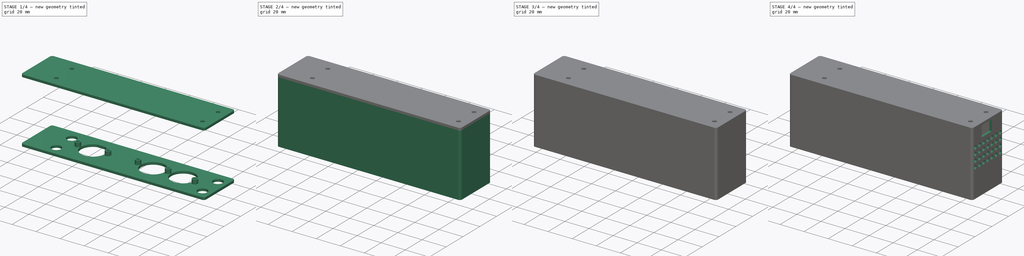
[diagram: build sequence overview — one tinted view per stage of 4, left to right]
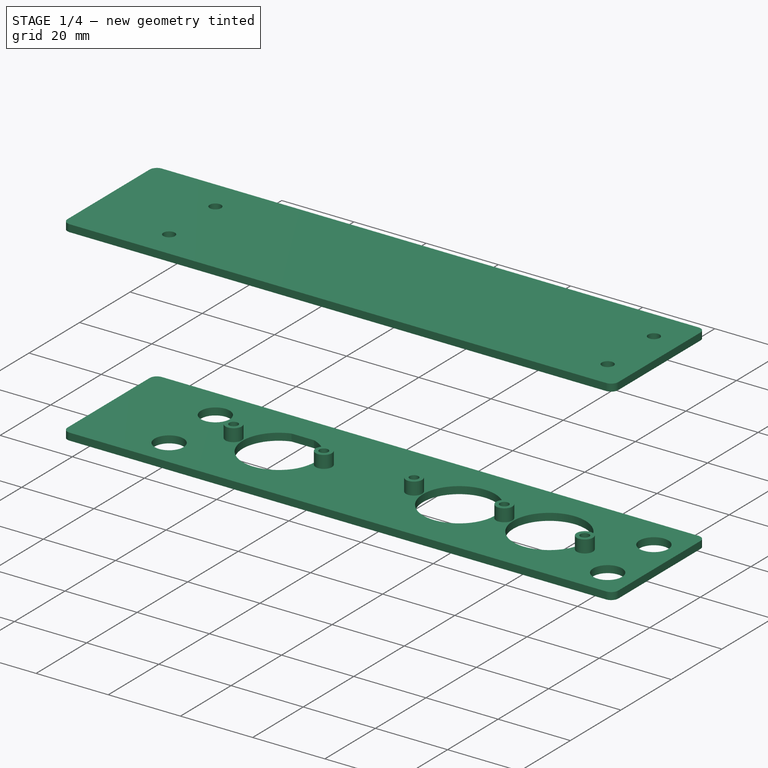
[diagram: stage 1 of 4 — iso view after this stage's code; geometry added in this stage tinted green]
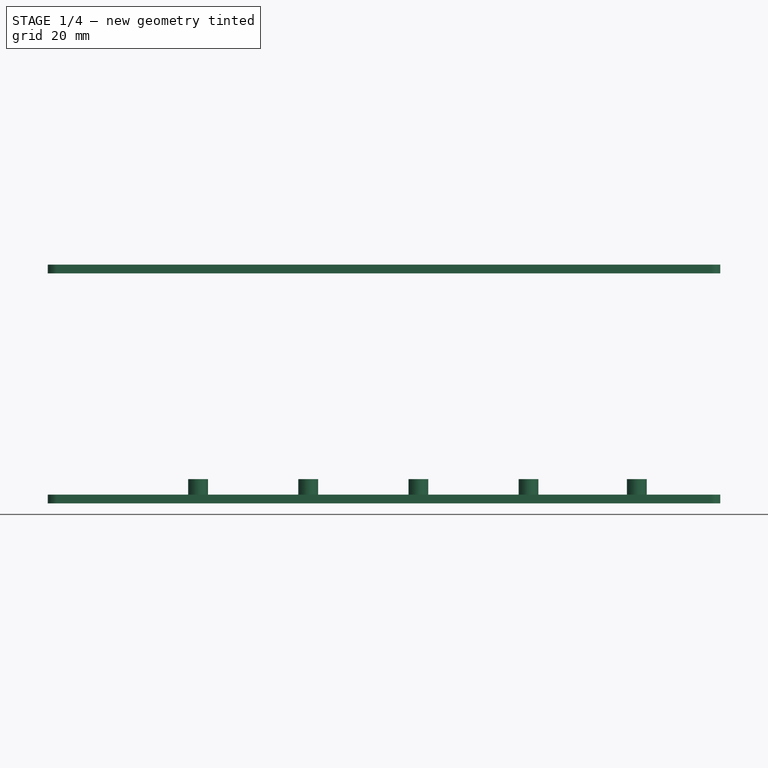
[diagram: stage 1 of 4 — front view after this stage's code; geometry added in this stage tinted green]
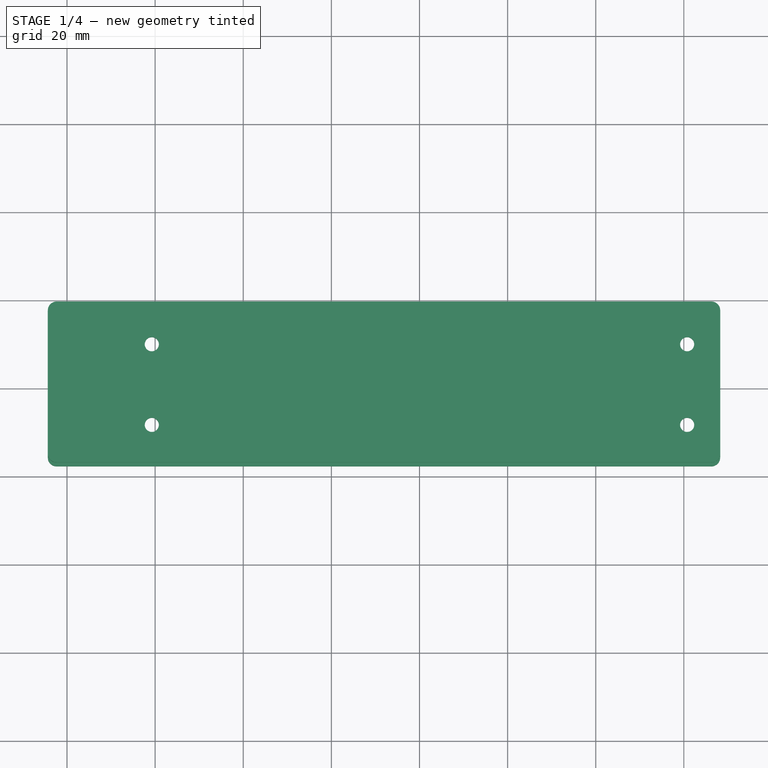
[diagram: stage 1 of 4 — top view after this stage's code; geometry added in this stage tinted green]
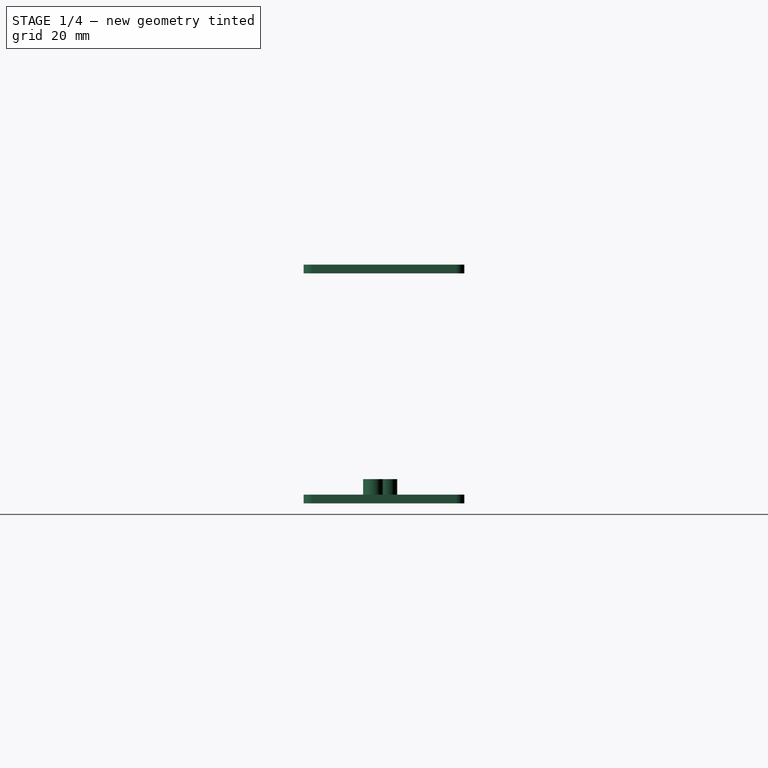
[diagram: stage 1 of 4 — right view after this stage's code; geometry added in this stage tinted green]
FCSTD DOCUMENT  (FreeCAD 1.0RUnknown)
Label: case bottom
License: All rights reserved
LicenseURL: https://en.wikipedia.org/wiki/All_rights_reserved
objects: Sketcher::SketchObject×10, PartDesign::Pad×7, PartDesign::LinearPattern×4, PartDesign::Pocket×3, PartDesign::MultiTransform×2, PartDesign::Body×2, PartDesign::ShapeBinder×1
note: 65 computed .brp shape members not serialized (recipe doc carries the construction recipe); baked Part::Feature solids carry a one-line shape summary decoded from their .brp

FEATURE [Sketcher::SketchObject] Sketch002
  ArcFitTolerance = 1e-06
  AttachmentSupport = -> [XY_Plane001]
  FullyConstrained = true
  MakeInternals = false
  MapMode = 5
  sketch-geometry (32):
    g0: LineSegment [constr] StartX=-67.75 StartY=16.85 StartZ=0 EndX=-67.75 EndY=-15.65 EndZ=0
    g1: LineSegment [constr] StartX=-67.75 StartY=-15.65 StartZ=0 EndX=66.25 EndY=-15.65 EndZ=0
    g2: LineSegment [constr] StartX=66.25 StartY=-15.65 StartZ=0 EndX=66.25 EndY=16.85 EndZ=0
    g3: LineSegment [constr] StartX=66.25 StartY=16.85 StartZ=0 EndX=-67.75 EndY=16.85 EndZ=0
    g4: Circle CenterX=-60.75 CenterY=9.15 CenterZ=0 NormalX=0 NormalY=0 NormalZ=1 AngleXU=0 Radius=4
    g5: Circle CenterX=-60.75 CenterY=-9.15 CenterZ=0 NormalX=0 NormalY=0 NormalZ=1 AngleXU=0 Radius=4
    g6: Circle CenterX=60.75 CenterY=-9.15 CenterZ=0 NormalX=0 NormalY=0 NormalZ=1 AngleXU=0 Radius=4
    g7: Circle CenterX=60.75 CenterY=9.15 CenterZ=0 NormalX=0 NormalY=0 NormalZ=1 AngleXU=0 Radius=4
    g8: LineSegment [constr] StartX=-60.75 StartY=9.15 StartZ=0 EndX=-60.75 EndY=-9.15 EndZ=0
    g9: LineSegment [constr] StartX=-60.75 StartY=-9.15 StartZ=0 EndX=60.75 EndY=-9.15 EndZ=0
    g10: LineSegment [constr] StartX=60.75 StartY=-9.15 StartZ=0 EndX=60.75 EndY=9.15 EndZ=0
    g11: LineSegment [constr] StartX=60.75 StartY=9.15 StartZ=0 EndX=-60.75 EndY=9.15 EndZ=0
    g12: LineSegment StartX=68.25 StartY=-15.65 StartZ=0 EndX=68.25 EndY=16.85 EndZ=0
    g13: LineSegment StartX=66.25 StartY=18.85 StartZ=0 EndX=-67.75 EndY=18.85 EndZ=0
    g14: LineSegment [constr] StartX=-69.75 StartY=16.85 StartZ=0 EndX=-69.75 EndY=-15.65 EndZ=0
    g15: LineSegment StartX=-67.75 StartY=-17.65 StartZ=0 EndX=66.25 EndY=-17.65 EndZ=0
    g16: ArcOfCircle [constr] CenterX=-67.75 CenterY=-15.65 CenterZ=0 NormalX=0 NormalY=0 NormalZ=1 AngleXU=0 Radius=2 StartAngle=3.14159 EndAngle=4.71239
    g17: ArcOfCircle [constr] CenterX=-67.75 CenterY=16.85 CenterZ=0 NormalX=0 NormalY=0 NormalZ=1 AngleXU=0 Radius=2 StartAngle=1.5708 EndAngle=3.14159
    g18: ArcOfCircle CenterX=66.25 CenterY=-15.65 CenterZ=0 NormalX=0 NormalY=0 NormalZ=1 AngleXU=0 Radius=2 StartAngle=4.71239 EndAngle=6.28319
    g19: ArcOfCircle CenterX=66.25 CenterY=16.85 CenterZ=0 NormalX=0 NormalY=0 NormalZ=1 AngleXU=0 Radius=2 StartAngle=0 EndAngle=1.5708
    g20: Circle CenterX=12.25 CenterY=1.35 CenterZ=0 NormalX=0 NormalY=0 NormalZ=1 AngleXU=0 Radius=10
    g21: Circle CenterX=37.25 CenterY=1.35 CenterZ=0 NormalX=0 NormalY=0 NormalZ=1 AngleXU=0 Radius=10
    g22: ArcOfCircle CenterX=-37.75 CenterY=1.35 CenterZ=0 NormalX=0 NormalY=0 NormalZ=1 AngleXU=0 Radius=10 StartAngle=1.88599 EndAngle=7.53879
    g23: LineSegment StartX=-34.65 StartY=10.8574 StartZ=0 EndX=-40.85 EndY=10.8574 EndZ=0
    g24: LineSegment [constr] StartX=-37.75 StartY=1.35 StartZ=0 EndX=37.25 EndY=1.35 EndZ=0
    g25: LineSegment StartX=-67.75 StartY=18.85 StartZ=0 EndX=-82.35 EndY=18.85 EndZ=0
    g26: LineSegment StartX=-84.35 StartY=16.85 StartZ=0 EndX=-84.35 EndY=-15.65 EndZ=0
    g27: LineSegment StartX=-67.75 StartY=-17.65 StartZ=0 EndX=-82.35 EndY=-17.65 EndZ=0
    g28: ArcOfCircle CenterX=-82.35 CenterY=-15.65 CenterZ=0 NormalX=0 NormalY=0 NormalZ=1 AngleXU=0 Radius=2 StartAngle=3.14159 EndAngle=4.71239
    g29: GeomPoint [constr] X=-84.35 Y=-17.65 Z=0
    g30: ArcOfCircle CenterX=-82.35 CenterY=16.85 CenterZ=0 NormalX=0 NormalY=0 NormalZ=1 AngleXU=0 Radius=2 StartAngle=1.5708 EndAngle=3.14159
    g31: LineSegment [constr] StartX=-82.35 StartY=16.85 StartZ=0 EndX=-82.35 EndY=-15.65 EndZ=0
  constraints (79):
    c: Coincident(g0,g1)
    c: Coincident(g1,g2)
    c: Coincident(g2,g3)
    c: Coincident(g3,g0)
    c: Vertical(g0)
    c: Vertical(g2)
    c: Horizontal(g1)
    c: Horizontal(g3)
    c: DistanceY(g2,g2) = 32.5
    c: Equal(g4,g5)
    c: Equal(g5,g7)
    c: Equal(g7,g6)
    c: Diameter(g5) = 8
    c: Coincident(g8,g9)
    c: Coincident(g9,g10)
    c: Coincident(g10,g11)
    c: Coincident(g11,g8)
    c: Vertical(g8)
    c: Vertical(g10)
    c: Horizontal(g9)
    c: Horizontal(g11)
    c: Coincident(g8,g4)
    c: Coincident(g9,g6)
    c: Coincident(g5,g8)
    c: Coincident(g7,g10)
    c: Symmetric(g7,g5,g-1)
    c: DistanceX(g9,g9) = 121.5
    c: Distance(g1,g9) = 6.5
    c: Distance(g2,g10) = 5.5
    c: Horizontal(g13)
    c: Horizontal(g15)
    c: Vertical(g14)
    c: Radius(g18) = 2
    c: Equal(g19,g18)
    c: Coincident(g16,g0)
    c: Tangent(g15,g16) = -1.5708
    c: Tangent(g16,g14) = -1.5708
    c: Tangent(g17,g13) = -1.5708
    c: Tangent(g17,g14) = -1.5708
    c: Coincident(g17,g0)
    c: Coincident(g19,g2)
    c: Tangent(g13,g19) = -1.5708
    c: Tangent(g12,g19) = -1.5708
    c: Coincident(g15,g18)
    c: Coincident(g18,g1)
    c: Tangent(g18,g12) = -1.5708
    c: Coincident(g23,g22)
    c: Coincident(g23,g22)
    c: Coincident(g24,g22)
    c: Coincident(g24,g21)
    c: Horizontal(g24)
    c: PointOnObject(g20,g24)
    c: Diameter(g20) = 20
    c: Equal(g20,g21)
    c: Equal(g21,g22)
    c: DistanceX(g20,g21) = 25
    c: DistanceX(g22,g20) = 50
    c: Distance(g21,g10) = 23.5
    c: Distance(g23,g23) = 6.2
    c: Horizontal(g23)
    c: Distance(g24,g9) = 10.5
    c: Coincident(g25,g13)
    c: Horizontal(g25)
    c: Vertical(g26)
    c: PointOnObject(g29,g26)
    c: PointOnObject(g29,g27)
    c: Tangent(g26,g28) = -1.5708
    c: Tangent(g27,g28) = 1.5708
    c: Tangent(g26,g30) = -1.5708
    c: Tangent(g25,g30) = -1.5708
    c: PointOnObject(g28,g1)
    c: PointOnObject(g30,g3)
    c: Coincident(g31,g30)
    c: Coincident(g31,g28)
    c: Vertical(g31)
    c: Distance(g14,g31) = 12.6
    c: Coincident(g27,g15)
    c: Distance(g8,g0) = 7
    c: Distance(g3,g11) = 7.7
FEATURE [PartDesign::Pad] Pad002  label="bottom"
  Direction = (0,0,1)
  Length = 2
  Length2 = 10
  Profile = -> Sketch002
  ReferenceAxis = -> Sketch002 [N_Axis]
  Refine = true
  Suppressed = false
  Type = 0
FEATURE [Sketcher::SketchObject] Sketch004
  ArcFitTolerance = 1e-06
  AttachmentSupport = -> [Pad002]
  ExternalGeometry = -> [Pad002]
  FullyConstrained = true
  MakeInternals = false
  MapMode = 2
  sketch-geometry (12):
    g0: Circle CenterX=-50.25 CenterY=1.35 CenterZ=0 NormalX=0 NormalY=0 NormalZ=1 AngleXU=0 Radius=2.25
    g1: Circle CenterX=-0.25 CenterY=1.35 CenterZ=0 NormalX=0 NormalY=0 NormalZ=1 AngleXU=0 Radius=2.25
    g2: Circle CenterX=49.3241 CenterY=-1.88524 CenterZ=0 NormalX=0 NormalY=0 NormalZ=1 AngleXU=0 Radius=2.25
    g3: Circle CenterX=24.75 CenterY=1.35 CenterZ=0 NormalX=0 NormalY=0 NormalZ=1 AngleXU=0 Radius=2.25
    g4: Circle CenterX=-25.25 CenterY=1.35 CenterZ=0 NormalX=0 NormalY=0 NormalZ=1 AngleXU=0 Radius=2.25
    g5: Circle CenterX=-50.25 CenterY=1.35 CenterZ=0 NormalX=0 NormalY=0 NormalZ=1 AngleXU=0 Radius=1.225
    g6: Circle CenterX=-0.25 CenterY=1.35 CenterZ=0 NormalX=0 NormalY=0 NormalZ=1 AngleXU=0 Radius=1.225
    g7: Circle CenterX=-25.25 CenterY=1.35 CenterZ=0 NormalX=0 NormalY=0 NormalZ=1 AngleXU=0 Radius=1.225
    g8: Circle CenterX=24.75 CenterY=1.35 CenterZ=0 NormalX=0 NormalY=0 NormalZ=1 AngleXU=0 Radius=1.225
    g9: Circle CenterX=49.3241 CenterY=-1.88524 CenterZ=0 NormalX=0 NormalY=0 NormalZ=1 AngleXU=0 Radius=1.225
    g10: LineSegment [constr] StartX=49.3241 StartY=-1.88524 StartZ=0 EndX=37.25 EndY=1.35 EndZ=0
    g11: LineSegment [constr] StartX=24.75 StartY=1.35 StartZ=0 EndX=37.25 EndY=1.35 EndZ=0
  constraints (28):
    c: Equal(g1,g3)
    c: Equal(g3,g2)
    c: Diameter(g0) = 4.5
    c: Diameter(g2) = 4.5
    c: Distance(g3,g1) = 20.5
    c: Coincident(g5,g0)
    c: Coincident(g6,g1)
    c: Coincident(g7,g4)
    c: Coincident(g8,g3)
    c: Coincident(g9,g2)
    c: Equal(g9,g8)
    c: Equal(g8,g7)
    c: Equal(g7,g6)
    c: Equal(g6,g5)
    c: Diameter(g9) = 2.45
    c: Equal(g1,g4)
    c: Distance(g4,g1) = 20.5
    c: Coincident(g10,g2)
    c: Coincident(g11,g3)
    c: Coincident(g11,g10)
    c: Symmetric(g-3,g-4,g3)
    c: Angle(g11,g10) = -0.261799
    c: PointOnObject(g0,g11)
    c: Distance(g0,g4) = 20.5
    c: Coincident(g10,g-4)
    c: Equal(g11,g10)
    c: PointOnObject(g1,g11)
    c: PointOnObject(g4,g11)
FEATURE [PartDesign::Pad] Pad003  label="lens holder posts"
  BaseFeature = -> Pad002
  Direction = (0,0,1)
  Length = 5.5
  Length2 = 10
  Profile = -> Sketch004
  ReferenceAxis = -> Sketch004 [N_Axis]
  Refine = true
  Suppressed = false
  Type = 0
FEATURE [PartDesign::Body] Body001  label="case "
  AllowCompound = false
  Group = -> [Sketch002,Pad002,Sketch004,Pad003,Sketch005,Pad004,Sketch006,Pad005,Sketch008,Pad006,Sketch009,Pad007,Sketch010,Pocket,MultiTransform,LinearPattern,LinearPattern001,Sketch011,Pocket001,MultiTransform001,LinearPattern002,LinearPattern003,Sketch012,Pocket002]
  Origin = -> Origin001
  Tip = -> Pocket002
FEATURE [PartDesign::ShapeBinder] CopyPocket002
  TraceSupport = false
FEATURE [Sketcher::SketchObject] Sketch
  ArcFitTolerance = 1e-06
  AttachmentSupport = -> [CopyPocket002]
  FullyConstrained = true
  MakeInternals = false
  MapMode = 5
  Placement = pos=(0,0,52.2) rot=(0,0,1;0rad)
  sketch-geometry (20):
    g0: LineSegment StartX=66.25 StartY=18.85 StartZ=0 EndX=-82.35 EndY=18.85 EndZ=0
    g1: LineSegment StartX=-84.35 StartY=16.85 StartZ=0 EndX=-84.35 EndY=-15.65 EndZ=0
    g2: LineSegment StartX=-82.35 StartY=-17.65 StartZ=0 EndX=66.25 EndY=-17.65 EndZ=0
    g3: LineSegment StartX=68.25 StartY=-15.65 StartZ=0 EndX=68.25 EndY=16.85 EndZ=0
    g4: ArcOfCircle CenterX=-82.35 CenterY=16.85 CenterZ=0 NormalX=0 NormalY=0 NormalZ=1 AngleXU=0 Radius=2 StartAngle=1.5708 EndAngle=3.14159
    g5: GeomPoint [constr] X=-84.35 Y=18.85 Z=0
    g6: ArcOfCircle CenterX=-82.35 CenterY=-15.65 CenterZ=0 NormalX=0 NormalY=0 NormalZ=1 AngleXU=0 Radius=2 StartAngle=3.14159 EndAngle=4.71239
    g7: GeomPoint [constr] X=-84.35 Y=-17.65 Z=0
    g8: ArcOfCircle CenterX=66.25 CenterY=-15.65 CenterZ=0 NormalX=0 NormalY=0 NormalZ=1 AngleXU=0 Radius=2 StartAngle=4.71239 EndAngle=6.28319
    g9: GeomPoint [constr] X=68.25 Y=-17.65 Z=0
    g10: ArcOfCircle CenterX=66.25 CenterY=16.85 CenterZ=0 NormalX=0 NormalY=0 NormalZ=1 AngleXU=0 Radius=2 StartAngle=0 EndAngle=1.5708
    g11: GeomPoint [constr] X=68.25 Y=18.85 Z=0
    g12: LineSegment [constr] StartX=-60.75 StartY=9.15 StartZ=0 EndX=-60.75 EndY=-9.15 EndZ=0
    g13: LineSegment [constr] StartX=-60.75 StartY=-9.15 StartZ=0 EndX=60.75 EndY=-9.15 EndZ=0
    g14: LineSegment [constr] StartX=60.75 StartY=-9.15 StartZ=0 EndX=60.75 EndY=9.15 EndZ=0
    g15: LineSegment [constr] StartX=60.75 StartY=9.15 StartZ=0 EndX=-60.75 EndY=9.15 EndZ=0
    g16: Circle CenterX=60.75 CenterY=-9.15 CenterZ=0 NormalX=0 NormalY=0 NormalZ=1 AngleXU=0 Radius=1.6
    g17: Circle CenterX=60.75 CenterY=9.15 CenterZ=0 NormalX=0 NormalY=0 NormalZ=1 AngleXU=0 Radius=1.6
    g18: Circle CenterX=-60.75 CenterY=9.15 CenterZ=0 NormalX=0 NormalY=0 NormalZ=1 AngleXU=0 Radius=1.6
    g19: Circle CenterX=-60.75 CenterY=-9.15 CenterZ=0 NormalX=0 NormalY=0 NormalZ=1 AngleXU=0 Radius=1.6
  constraints (47):
    c: Horizontal(g0)
    c: Horizontal(g2)
    c: Vertical(g1)
    c: Vertical(g3)
    c: PointOnObject(g5,g1)
    c: PointOnObject(g5,g0)
    c: Tangent(g1,g4) = -1.5708
    c: Tangent(g0,g4) = -1.5708
    c: PointOnObject(g7,g2)
    c: PointOnObject(g7,g1)
    c: Tangent(g2,g6) = -1.5708
    c: Tangent(g1,g6) = -1.5708
    c: PointOnObject(g9,g3)
    c: PointOnObject(g9,g2)
    c: Tangent(g3,g8) = -1.5708
    c: Tangent(g2,g8) = -1.5708
    c: PointOnObject(g11,g3)
    c: PointOnObject(g11,g0)
    c: Tangent(g3,g10) = -1.5708
    c: Tangent(g0,g10) = -1.5708
    c: Equal(g10,g8)
    c: Equal(g8,g6)
    c: Equal(g6,g4)
    c: Distance(g0,g2) = 36.5
    c: Coincident(g12,g13)
    c: Coincident(g13,g14)
    c: Coincident(g14,g15)
    c: Coincident(g15,g12)
    c: Vertical(g12)
    c: Vertical(g14)
    c: Horizontal(g13)
    c: Horizontal(g15)
    c: Coincident(g16,g13)
    c: Coincident(g17,g14)
    c: Coincident(g18,g12)
    c: Coincident(g19,g12)
    c: Symmetric(g12,g14,g-1)
    c: DistanceY(g14,g14) = 18.3
    c: DistanceX(g13,g13) = 121.5
    c: Distance(g12,g1) = 23.6
    c: Equal(g19,g18)
    c: Equal(g18,g17)
    c: Equal(g17,g16)
    c: Diameter(g18) = 3.2
    c: Radius(g8) = 2
    c: Distance(g0,g15) = 9.7
    c: Distance(g3,g14) = 7.5
FEATURE [PartDesign::Pad] Pad
  Direction = (0,0,1)
  Length = 2
  Length2 = 10
  Profile = -> Sketch
  ReferenceAxis = -> Sketch [N_Axis]
  Refine = true
  Suppressed = false
  Type = 0
FEATURE [PartDesign::Body] Body  label="case lid"
  AllowCompound = false
  Group = -> [CopyPocket002,Sketch,Pad]
  Origin = -> Origin
  Tip = -> Pad
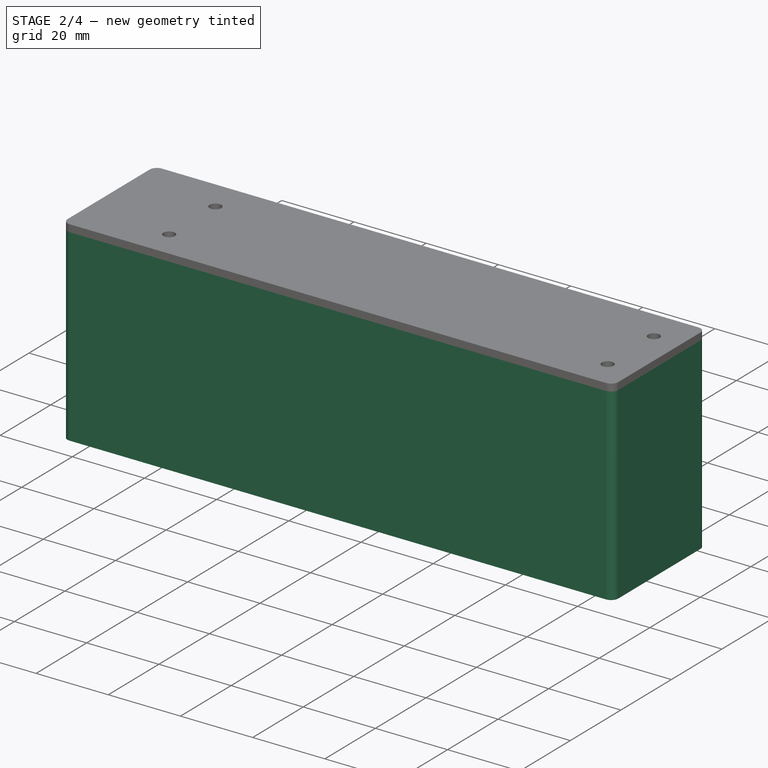
[diagram: stage 2 of 4 — iso view after this stage's code; geometry added in this stage tinted green]
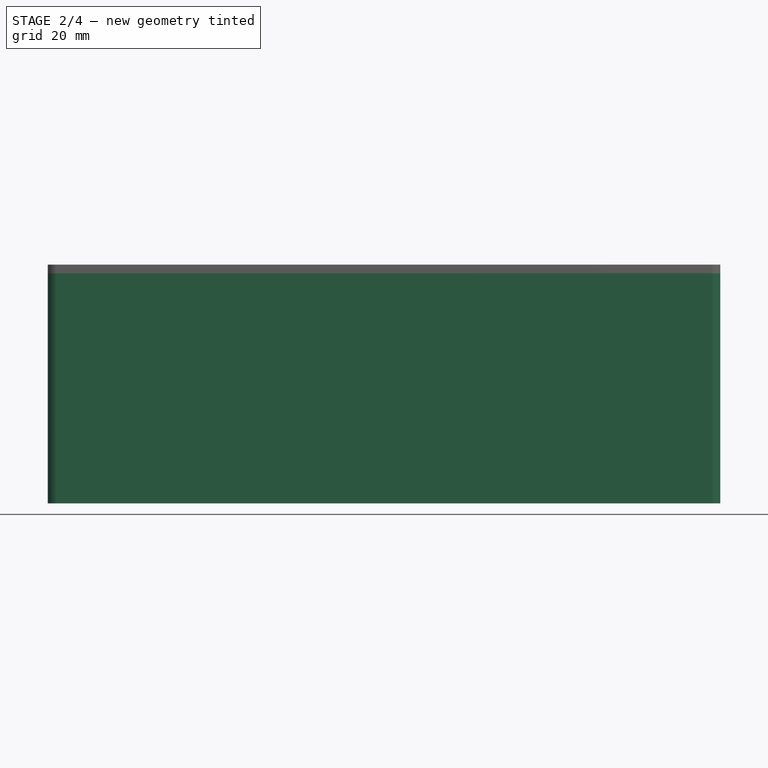
[diagram: stage 2 of 4 — front view after this stage's code; geometry added in this stage tinted green]
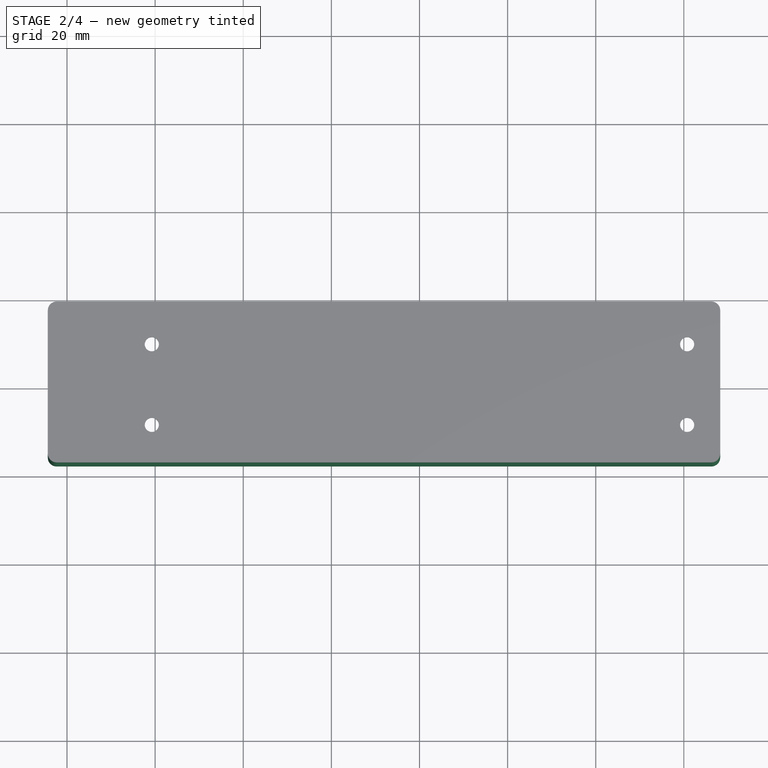
[diagram: stage 2 of 4 — top view after this stage's code; geometry added in this stage tinted green]
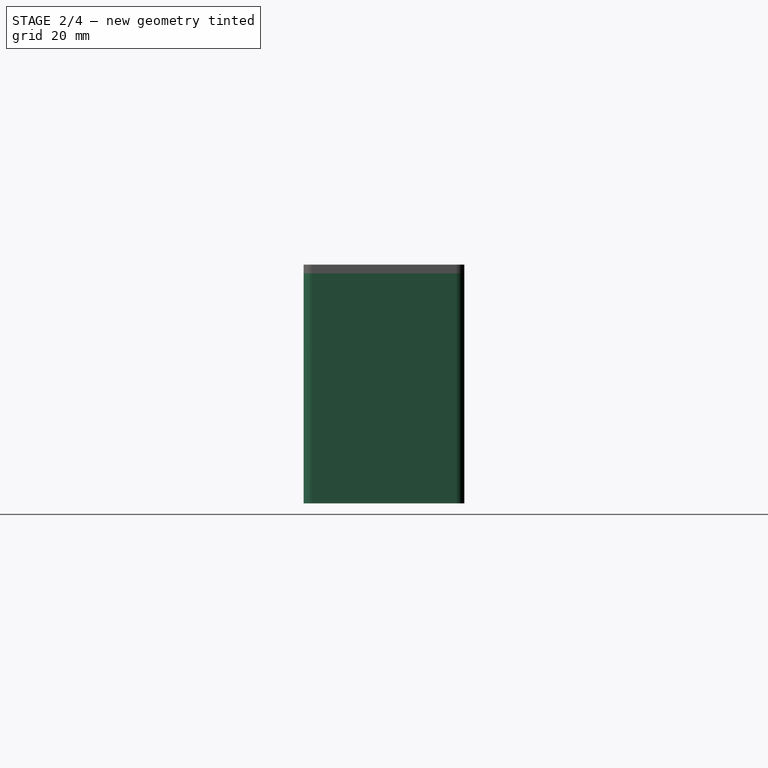
[diagram: stage 2 of 4 — right view after this stage's code; geometry added in this stage tinted green]
FEATURE [Sketcher::SketchObject] Sketch005
  ArcFitTolerance = 1e-06
  AttachmentSupport = -> [Pad003]
  ExternalGeometry = -> [Pad003]
  FullyConstrained = true
  MakeInternals = false
  MapMode = 5
  Placement = pos=(0,0,0) rot=(1,0,0;3.14159rad)
  sketch-geometry (7):
    g0: Circle CenterX=12.25 CenterY=-1.35 CenterZ=0 NormalX=0 NormalY=0 NormalZ=1 AngleXU=0 Radius=9
    g1: Circle CenterX=12.25 CenterY=-1.35 CenterZ=0 NormalX=0 NormalY=0 NormalZ=1 AngleXU=0 Radius=10
    g2: Circle CenterX=37.25 CenterY=-1.35 CenterZ=0 NormalX=0 NormalY=0 NormalZ=1 AngleXU=0 Radius=10
    g3: Circle CenterX=37.25 CenterY=-1.35 CenterZ=0 NormalX=0 NormalY=0 NormalZ=1 AngleXU=0 Radius=9
    g4: Circle CenterX=-37.75 CenterY=-1.35 CenterZ=0 NormalX=0 NormalY=0 NormalZ=1 AngleXU=0 Radius=9
    g5: ArcOfCircle CenterX=-37.75 CenterY=-1.35 CenterZ=0 NormalX=0 NormalY=0 NormalZ=1 AngleXU=0 Radius=10 StartAngle=5.02758 EndAngle=10.6804
    g6: LineSegment StartX=-34.65 StartY=-10.8574 StartZ=0 EndX=-40.85 EndY=-10.8574 EndZ=0
  constraints (14):
    c: Coincident(g0,g-3)
    c: Coincident(g1,g0)
    c: Coincident(g2,g-4)
    c: Equal(g2,g-4)
    c: Coincident(g3,g2)
    c: Coincident(g6,g5)
    c: Diameter(g4) = 18
    c: Equal(g4,g0)
    c: Equal(g0,g3)
    c: Tangent(g1,g-3)
    c: Coincident(g5,g4)
    c: Coincident(g-5,g5)
    c: Tangent(g5,g-5) = -1.5708
    c: Coincident(g6,g5)
FEATURE [PartDesign::Pad] Pad004  label="lens holders"
  BaseFeature = -> Pad003
  Direction = (0,0,-1)
  Length = 0.5
  Length2 = 10
  Profile = -> Sketch005
  ReferenceAxis = -> Sketch005 [N_Axis]
  Refine = true
  Reversed = true
  Suppressed = false
  Type = 0
FEATURE [Sketcher::SketchObject] Sketch006
  ArcFitTolerance = 1e-06
  AttachmentSupport = -> [Pad004]
  ExternalGeometry = -> [Pad004]
  FullyConstrained = true
  MakeInternals = false
  MapMode = 5
  Placement = pos=(0,0,2) rot=(0,0,1;0rad)
  sketch-geometry (20):
    g0: LineSegment StartX=66.25 StartY=-17.65 StartZ=0 EndX=-82.35 EndY=-17.65 EndZ=0
    g1: LineSegment StartX=-82.35 StartY=18.85 StartZ=0 EndX=66.25 EndY=18.85 EndZ=0
    g2: LineSegment StartX=68.25 StartY=16.85 StartZ=0 EndX=68.25 EndY=-15.65 EndZ=0
    g3: ArcOfCircle CenterX=66.25 CenterY=-15.65 CenterZ=0 NormalX=0 NormalY=0 NormalZ=1 AngleXU=0 Radius=2 StartAngle=4.71239 EndAngle=6.28319
    g4: LineSegment StartX=66.25 StartY=16.85 StartZ=0 EndX=-67.75 EndY=16.85 EndZ=0
    g5: LineSegment StartX=-67.75 StartY=-15.65 StartZ=0 EndX=66.25 EndY=-15.65 EndZ=0
    g6: LineSegment StartX=66.25 StartY=-15.65 StartZ=0 EndX=66.25 EndY=16.85 EndZ=0
    g7: ArcOfCircle CenterX=66.25 CenterY=16.85 CenterZ=0 NormalX=0 NormalY=0 NormalZ=1 AngleXU=0 Radius=2 StartAngle=0 EndAngle=1.5708
    g8: LineSegment StartX=-84.35 StartY=-15.65 StartZ=0 EndX=-84.35 EndY=16.85 EndZ=0
    g9: ArcOfCircle CenterX=-82.35 CenterY=16.85 CenterZ=0 NormalX=0 NormalY=0 NormalZ=1 AngleXU=0 Radius=2 StartAngle=1.5708 EndAngle=3.14159
    g10: ArcOfCircle CenterX=-82.35 CenterY=-15.65 CenterZ=0 NormalX=0 NormalY=0 NormalZ=1 AngleXU=0 Radius=2 StartAngle=3.14159 EndAngle=4.71239
    g11: LineSegment StartX=-67.75 StartY=-12.65 StartZ=0 EndX=-69.75 EndY=-12.65 EndZ=0
    g12: LineSegment StartX=-69.75 StartY=-12.65 StartZ=0 EndX=-69.75 EndY=-15.65 EndZ=0
    g13: LineSegment StartX=-69.75 StartY=-15.65 StartZ=0 EndX=-82.35 EndY=-15.65 EndZ=0
    g14: LineSegment StartX=-82.35 StartY=-15.65 StartZ=0 EndX=-82.35 EndY=16.85 EndZ=0
    g15: LineSegment StartX=-82.35 StartY=16.85 StartZ=0 EndX=-69.75 EndY=16.85 EndZ=0
    g16: LineSegment StartX=-69.75 StartY=16.85 StartZ=0 EndX=-69.75 EndY=13.85 EndZ=0
    g17: LineSegment StartX=-69.75 StartY=13.85 StartZ=0 EndX=-67.75 EndY=13.85 EndZ=0
    g18: LineSegment StartX=-67.75 StartY=13.85 StartZ=0 EndX=-67.75 EndY=16.85 EndZ=0
    g19: LineSegment StartX=-67.75 StartY=-15.65 StartZ=0 EndX=-67.75 EndY=-12.65 EndZ=0
  constraints (49):
    c: Coincident(g2,g-5)
    c: Tangent(g3,g-4) = -1.5708
    c: Coincident(g9,g-10)
    c: Coincident(g10,g-7)
    c: Coincident(g12,g11)
    c: Vertical(g12)
    c: Coincident(g13,g10)
    c: Coincident(g14,g10)
    c: Coincident(g14,g9)
    c: Coincident(g15,g9)
    c: Vertical(g16)
    c: Coincident(g17,g16)
    c: Coincident(g18,g17)
    c: Vertical(g18)
    c: DistanceX(g13,g13) = 12.6
    c: Distance(g11,g13) = 3
    c: Horizontal(g13)
    c: Horizontal(g11)
    c: Coincident(g19,g5)
    c: Coincident(g19,g11)
    c: Vertical(g19)
    c: Equal(g19,g18)
    c: Coincident(g18,g4)
    c: Coincident(g15,g16)
    c: Equal(g17,g11)
    c: DistanceX(g11,g11) = 2
    c: Tangent(g10,g8) = 1.5708
    c: Tangent(g9,g8) = 1.5708
    c: Coincident(g0,g-8)
    c: Coincident(g3,g0)
    c: Coincident(g2,g3)
    c: Coincident(g5,g6)
    c: Coincident(g5,g3)
    c: Coincident(g4,g-5)
    c: Coincident(g7,g1)
    c: Coincident(g7,g4)
    c: Coincident(g7,g2)
    c: Coincident(g6,g4)
    c: Tangent(g1,g-5)
    c: Coincident(g9,g-10) = 1.5708
    c: Horizontal(g15)
    c: PointOnObject(g15,g4)
    c: Horizontal(g17)
    c: Coincident(g0,g10)
    c: Coincident(g-8,g0)
    c: Coincident(g12,g13)
    c: PointOnObject(g12,g5)
    c: PointOnObject(g16,g12)
    c: Coincident(g1,g9)
FEATURE [PartDesign::Pad] Pad005  label="wall"
  BaseFeature = -> Pad004
  Direction = (0,0,1)
  Length = 50.2
  Length2 = 0.001
  Profile = -> Sketch006
  ReferenceAxis = -> Sketch006 [N_Axis]
  Refine = true
  Suppressed = false
  Type = 4
FEATURE [Sketcher::SketchObject] Sketch008
  ArcFitTolerance = 1e-06
  AttachmentSupport = -> [Pad005]
  ExternalGeometry = -> [Pad005]
  FullyConstrained = true
  MakeInternals = false
  MapMode = 5
  Placement = pos=(0,0,2) rot=(0,0,1;0rad)
  sketch-geometry (22):
    g0: ArcOfCircle CenterX=60.75 CenterY=-9.15 CenterZ=0 NormalX=0 NormalY=0 NormalZ=1 AngleXU=0 Radius=5.5 StartAngle=1.5708 EndAngle=3.14159
    g1: ArcOfCircle CenterX=60.75 CenterY=9.15 CenterZ=0 NormalX=0 NormalY=0 NormalZ=1 AngleXU=0 Radius=5.5 StartAngle=3.14159 EndAngle=4.71239
    g2: ArcOfCircle CenterX=-60.75 CenterY=9.15 CenterZ=0 NormalX=0 NormalY=0 NormalZ=1 AngleXU=0 Radius=5.5 StartAngle=3.14159 EndAngle=6.28319
    g3: LineSegment StartX=-55.25 StartY=9.15 StartZ=0 EndX=-55.25 EndY=16.85 EndZ=0
    g4: LineSegment StartX=-55.25 StartY=-9.15 StartZ=0 EndX=-55.25 EndY=-15.65 EndZ=0
    g5: LineSegment StartX=55.25 StartY=-9.15 StartZ=0 EndX=55.25 EndY=-15.65 EndZ=0
    g6: LineSegment StartX=60.75 StartY=-3.65 StartZ=0 EndX=66.25 EndY=-3.65 EndZ=0
    g7: LineSegment StartX=60.75 StartY=3.65 StartZ=0 EndX=66.25 EndY=3.65 EndZ=0
    g8: LineSegment StartX=55.25 StartY=9.15 StartZ=0 EndX=55.25 EndY=16.85 EndZ=0
    g9: LineSegment StartX=-55.25 StartY=-15.65 StartZ=0 EndX=-66.25 EndY=-15.65 EndZ=0
    g10: LineSegment StartX=-66.25 StartY=16.85 StartZ=0 EndX=-55.25 EndY=16.85 EndZ=0
    g11: LineSegment StartX=66.25 StartY=16.85 StartZ=0 EndX=55.25 EndY=16.85 EndZ=0
    g12: LineSegment StartX=66.25 StartY=-15.65 StartZ=0 EndX=55.25 EndY=-15.65 EndZ=0
    g13: Circle CenterX=-60.75 CenterY=-9.15 CenterZ=0 NormalX=0 NormalY=0 NormalZ=1 AngleXU=0 Radius=4
    g14: Circle CenterX=-60.75 CenterY=9.15 CenterZ=0 NormalX=0 NormalY=0 NormalZ=1 AngleXU=0 Radius=4
    g15: ArcOfCircle CenterX=-60.75 CenterY=-9.15 CenterZ=0 NormalX=0 NormalY=0 NormalZ=1 AngleXU=0 Radius=5.5 StartAngle=2e-16 EndAngle=3.14159
    g16: LineSegment StartX=66.25 StartY=-3.65 StartZ=0 EndX=66.25 EndY=-15.65 EndZ=0
    g17: LineSegment StartX=66.25 StartY=3.65 StartZ=0 EndX=66.25 EndY=16.85 EndZ=0
    g18: LineSegment StartX=-66.25 StartY=-9.15 StartZ=0 EndX=-66.25 EndY=-15.65 EndZ=0
    g19: LineSegment StartX=-66.25 StartY=16.85 StartZ=0 EndX=-66.25 EndY=9.15 EndZ=0
    g20: Circle CenterX=60.75 CenterY=-9.15 CenterZ=0 NormalX=0 NormalY=0 NormalZ=1 AngleXU=0 Radius=4
    g21: Circle CenterX=60.75 CenterY=9.15 CenterZ=0 NormalX=0 NormalY=0 NormalZ=1 AngleXU=0 Radius=3.99999
  constraints (54):
    c: Equal(g1,g0)
    c: Vertical(g5)
    c: Vertical(g8)
    c: PointOnObject(g5,g-3)
    c: PointOnObject(g8,g-5)
    c: Tangent(g5,g0) = -1.5708
    c: PointOnObject(g6,g-4)
    c: Tangent(g6,g0) = 1.5708
    c: Horizontal(g6)
    c: PointOnObject(g7,g-4)
    c: Horizontal(g7)
    c: Tangent(g7,g1) = -1.5708
    c: Tangent(g8,g1) = 1.5708
    c: PointOnObject(g3,g-5)
    c: Vertical(g3)
    c: Tangent(g3,g2) = -1.5708
    c: Vertical(g4)
    c: Coincident(g9,g4)
    c: Coincident(g10,g3)
    c: Coincident(g11,g8)
    c: Coincident(g12,g5)
    c: Horizontal(g12)
    c: Horizontal(g11)
    c: Horizontal(g10)
    c: Horizontal(g9)
    c: PointOnObject(g4,g-3)
    c: Coincident(g14,g2)
    c: Coincident(g2,g-9)
    c: Coincident(g15,g13)
    c: Coincident(g13,g-7)
    c: Tangent(g15,g4) = 1.5708
    c: Equal(g0,g15)
    c: Distance(g13,g15) = 1.5
    c: Equal(g15,g2)
    c: Coincident(g16,g6)
    c: Coincident(g12,g16)
    c: Vertical(g16)
    c: Coincident(g17,g7)
    c: Coincident(g17,g11)
    c: Vertical(g17)
    c: Coincident(g18,g9)
    c: Vertical(g18)
    c: Tangent(g18,g15) = -1.5708
    c: Coincident(g19,g10)
    c: Vertical(g19)
    c: Tangent(g19,g2) = -1.5708
    c: Equal(g13,g-7)
    c: Equal(g-9,g14)
    c: Coincident(g20,g-10)
    c: Equal(g20,g-10)
    c: Coincident(g0,g20)
    c: Coincident(g1,g-11)
    c: Coincident(g21,g1)
    c: Tangent(g21,g-11)
FEATURE [PartDesign::Pad] Pad006  label="pcb holder posts"
  BaseFeature = -> Pad005
  Direction = (0,0,1)
  Length = 0.01
  Length2 = 16.5
  Profile = -> Sketch008
  ReferenceAxis = -> Sketch008 [N_Axis]
  Refine = true
  Reversed = true
  Suppressed = false
  Type = 4
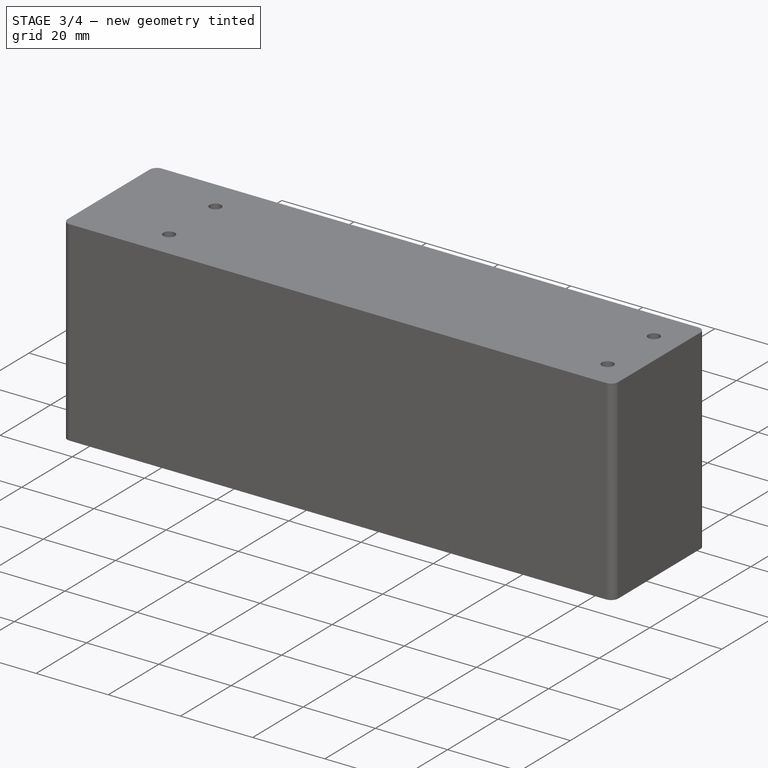
[diagram: stage 3 of 4 — iso view after this stage's code; geometry added in this stage tinted green]
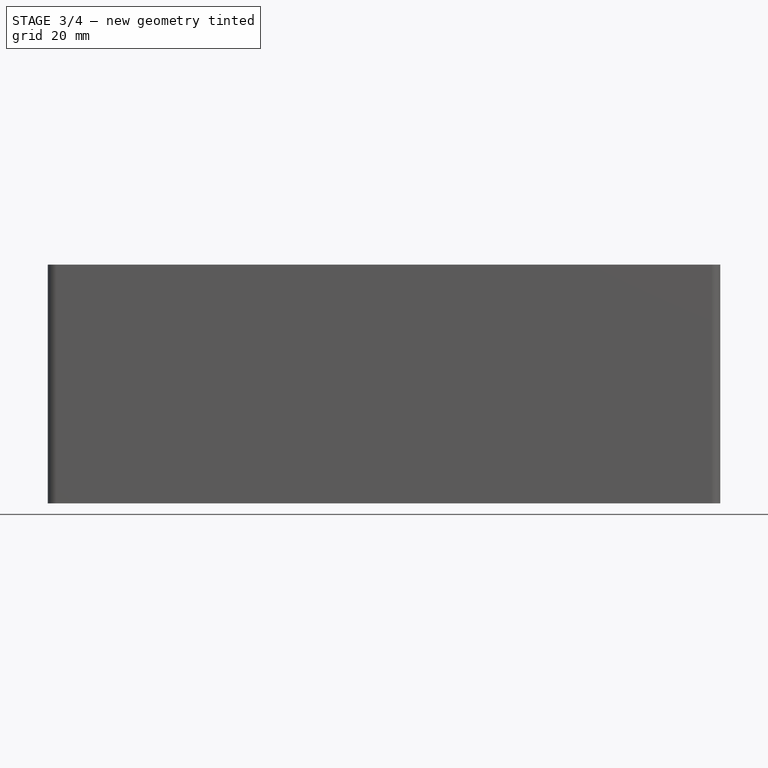
[diagram: stage 3 of 4 — front view after this stage's code; geometry added in this stage tinted green]
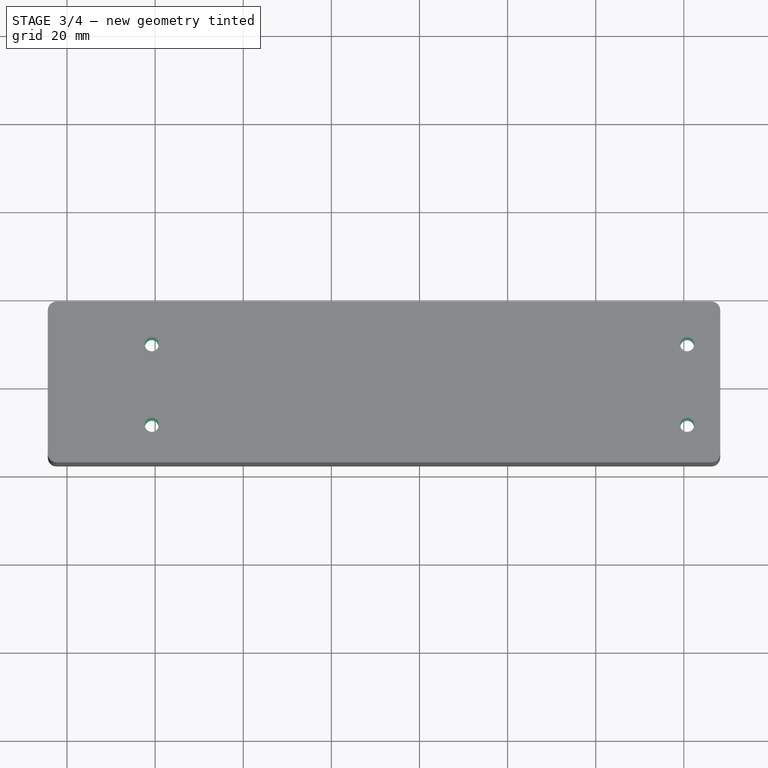
[diagram: stage 3 of 4 — top view after this stage's code; geometry added in this stage tinted green]
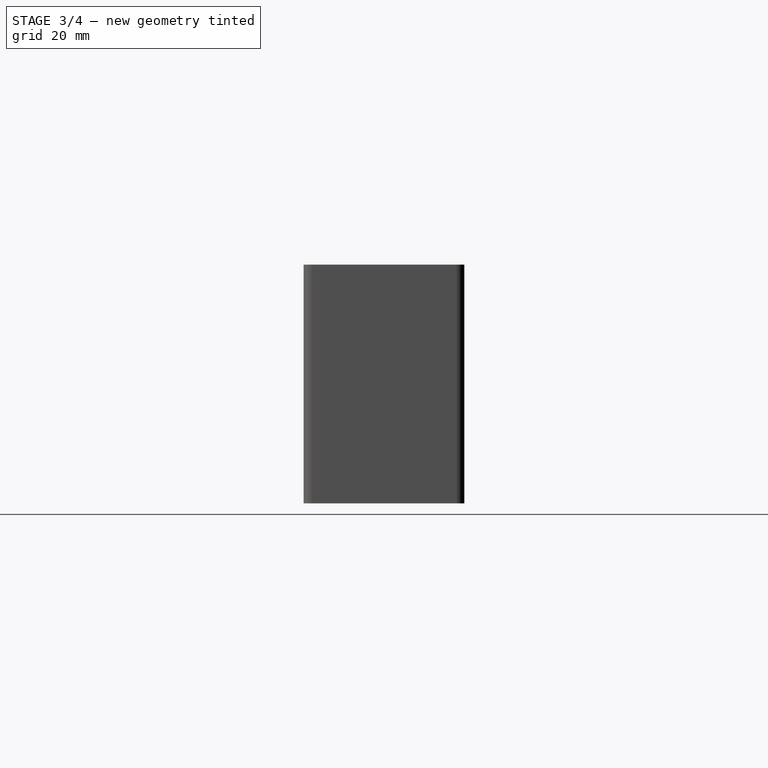
[diagram: stage 3 of 4 — right view after this stage's code; geometry added in this stage tinted green]
FEATURE [Sketcher::SketchObject] Sketch009
  ArcFitTolerance = 1e-06
  AttachmentSupport = -> [Pad006]
  ExternalGeometry = -> [Pad006]
  FullyConstrained = true
  MakeInternals = false
  MapMode = 5
  Placement = pos=(0,0,18.5) rot=(0,0,1;0rad)
  sketch-geometry (22):
    g0: LineSegment StartX=-66.25 StartY=-15.65 StartZ=0 EndX=-55.25 EndY=-15.65 EndZ=0
    g1: LineSegment StartX=-66.25 StartY=16.85 StartZ=0 EndX=-55.25 EndY=16.85 EndZ=0
    g2: Circle CenterX=-60.75 CenterY=9.15 CenterZ=0 NormalX=0 NormalY=0 NormalZ=1 AngleXU=0 Radius=1.55
    g3: Circle CenterX=-60.75 CenterY=-9.15 CenterZ=0 NormalX=0 NormalY=0 NormalZ=1 AngleXU=0 Radius=1.55
    g4: Circle CenterX=60.75 CenterY=-9.15 CenterZ=0 NormalX=0 NormalY=0 NormalZ=1 AngleXU=0 Radius=1.55
    g5: Circle CenterX=60.75 CenterY=9.15 CenterZ=0 NormalX=0 NormalY=0 NormalZ=1 AngleXU=0 Radius=1.55
    g6: LineSegment StartX=55.25 StartY=-15.65 StartZ=0 EndX=55.25 EndY=-9.15 EndZ=0
    g7: LineSegment StartX=60.75 StartY=-3.65 StartZ=0 EndX=66.25 EndY=-3.65 EndZ=0
    g8: LineSegment StartX=60.75 StartY=3.65 StartZ=0 EndX=66.25 EndY=3.65001 EndZ=0
    g9: ArcOfCircle CenterX=60.75 CenterY=9.14999 CenterZ=0 NormalX=0 NormalY=0 NormalZ=1 AngleXU=0 Radius=5.49999 StartAngle=3.14159 EndAngle=4.71239
    g10: ArcOfCircle CenterX=60.75 CenterY=-9.15 CenterZ=0 NormalX=0 NormalY=0 NormalZ=1 AngleXU=0 Radius=5.5 StartAngle=1.5708 EndAngle=3.14159
    g11: LineSegment StartX=-55.25 StartY=-15.65 StartZ=0 EndX=-55.25 EndY=-9.15 EndZ=0
    g12: LineSegment StartX=-55.25 StartY=9.15 StartZ=0 EndX=-55.25 EndY=16.85 EndZ=0
    g13: ArcOfCircle CenterX=-60.75 CenterY=9.15001 CenterZ=0 NormalX=0 NormalY=0 NormalZ=1 AngleXU=0 Radius=5.5 StartAngle=3.14159 EndAngle=6.28318
    g14: ArcOfCircle CenterX=-60.75 CenterY=-9.15 CenterZ=0 NormalX=0 NormalY=0 NormalZ=1 AngleXU=0 Radius=5.5 StartAngle=-2.7e-15 EndAngle=3.14159
    g15: LineSegment StartX=-66.25 StartY=-15.65 StartZ=0 EndX=-66.25 EndY=-9.15 EndZ=0
    g16: LineSegment StartX=-66.25 StartY=9.15 StartZ=0 EndX=-66.25 EndY=16.85 EndZ=0
    g17: LineSegment StartX=66.25 StartY=-3.65 StartZ=0 EndX=66.25 EndY=-15.65 EndZ=0
    g18: LineSegment StartX=66.25 StartY=-15.65 StartZ=0 EndX=55.25 EndY=-15.65 EndZ=0
    g19: LineSegment StartX=66.25 StartY=3.65001 StartZ=0 EndX=66.25 EndY=16.85 EndZ=0
    g20: LineSegment StartX=55.25 StartY=9.14999 StartZ=0 EndX=55.25 EndY=16.85 EndZ=0
    g21: LineSegment StartX=55.25 StartY=16.85 StartZ=0 EndX=66.25 EndY=16.85 EndZ=0
  constraints (52):
    c: Coincident(g0,g-13)
    c: Coincident(g1,g-14)
    c: Coincident(g2,g-4)
    c: Coincident(g4,g-6)
    c: Coincident(g5,g-8)
    c: Coincident(g6,g-6)
    c: Equal(g4,g5)
    c: Equal(g5,g2)
    c: Equal(g2,g3)
    c: Diameter(g3) = 3.1
    c: Coincident(g11,g0)
    c: Coincident(g14,g11)
    c: Coincident(g-3,g11)
    c: Coincident(g13,g12)
    c: Coincident(g1,g12)
    c: Coincident(g-5,g12)
    c: Tangent(g13,g-4)
    c: Coincident(g10,g7)
    c: Coincident(g10,g6)
    c: Coincident(g10,g4)
    c: Tangent(g7,g-6)
    c: Coincident(g8,g-9)
    c: Tangent(g9,g-8)
    c: Coincident(g15,g0)
    c: Coincident(g1,g-14)
    c: Coincident(g16,g1)
    c: Coincident(g0,g-13)
    c: Tangent(g-16,g14) = -1.5708
    c: Coincident(g3,g14)
    c: Vertical(g6)
    c: Horizontal(g7)
    c: Coincident(g17,g7)
    c: Coincident(g18,g17)
    c: Coincident(g18,g6)
    c: Horizontal(g18)
    c: Vertical(g17)
    c: PointOnObject(g17,g-12)
    c: Coincident(g19,g8)
    c: Vertical(g19)
    c: Tangent(g9,g8) = -1.5708
    c: Vertical(g20)
    c: Coincident(g21,g20)
    c: Coincident(g21,g19)
    c: Horizontal(g21)
    c: Tangent(g20,g9) = 1.5708
    c: PointOnObject(g20,g-10)
    c: PointOnObject(g7,g19)
    c: PointOnObject(g-9,g19)
    c: PointOnObject(g9,g6)
    c: Coincident(g14,g15)
    c: Coincident(g16,g13)
    c: Coincident(g16,g-4)
FEATURE [PartDesign::Pad] Pad007  label="pcb holder post tops"
  BaseFeature = -> Pad006
  Direction = (0,0,1)
  Length = 0.01
  Length2 = 2
  Profile = -> Sketch009
  ReferenceAxis = -> Sketch009 [N_Axis]
  Refine = true
  Reversed = true
  Suppressed = false
  Type = 4
FEATURE [Sketcher::SketchObject] Sketch010
  ArcFitTolerance = 1e-06
  AttachmentSupport = -> [Pad005]
  ExternalGeometry = -> [Pad005]
  FullyConstrained = true
  MakeInternals = false
  MapMode = 5
  Placement = pos=(-84.35,0,0) rot=(0.57735,-0.57735,-0.57735;2.0944rad)
  sketch-geometry (5):
    g0: LineSegment [constr] StartX=-16.85 StartY=36.5 StartZ=0 EndX=-16.85 EndY=2 EndZ=0
    g1: LineSegment [constr] StartX=-16.85 StartY=2 StartZ=0 EndX=17.15 EndY=2 EndZ=0
    g2: LineSegment [constr] StartX=17.15 StartY=2 StartZ=0 EndX=17.15 EndY=36.5 EndZ=0
    g3: LineSegment [constr] StartX=17.15 StartY=36.5 StartZ=0 EndX=-16.85 EndY=36.5 EndZ=0
    g4: Circle CenterX=-15.35 CenterY=3.5 CenterZ=0 NormalX=0 NormalY=0 NormalZ=1 AngleXU=0 Radius=1.5
  constraints (15):
    c: Coincident(g0,g1)
    c: Coincident(g1,g2)
    c: Coincident(g2,g3)
    c: Coincident(g3,g0)
    c: Vertical(g0)
    c: Vertical(g2)
    c: Horizontal(g1)
    c: Horizontal(g3)
    c: Diameter(g4) = 3
    c: Tangent(g4,g0)
    c: Tangent(g4,g1)
    c: DistanceY(g0,g0) = 34.5
    c: Distance(g1,g-3) = 2
    c: PointOnObject(g-3,g0)
    c: PointOnObject(g-4,g2)
FEATURE [PartDesign::Pocket] Pocket  label="air intake hole"
  BaseFeature = -> Pad007
  Direction = (1,0,0)
  Length = 0
  Length2 = 5
  Profile = -> Sketch010
  ReferenceAxis = -> Sketch010 [N_Axis]
  Refine = true
  Suppressed = false
  Type = 3
  UpToFace = -> Pad007 [Face32]
FEATURE [PartDesign::LinearPattern] LinearPattern
  Direction = -> Sketch010 [H_Axis]
  Length = 29.5
  Mode = 0
  Occurrences = 7
  Offset = 4.91667
  Refine = true
  Suppressed = false
  TransformMode = 0
FEATURE [PartDesign::LinearPattern] LinearPattern001
  Direction = -> Sketch010 [V_Axis]
  Length = 31.5
  Mode = 0
  Occurrences = 7
  Offset = 5.25
  Refine = true
  Suppressed = false
  TransformMode = 0
FEATURE [PartDesign::MultiTransform] MultiTransform  label="air intake hole pattern"
  BaseFeature = -> Pocket
  Originals = -> [Pocket]
  Refine = true
  Suppressed = false
  TransformMode = 0
  Transformations = -> [LinearPattern,LinearPattern001]
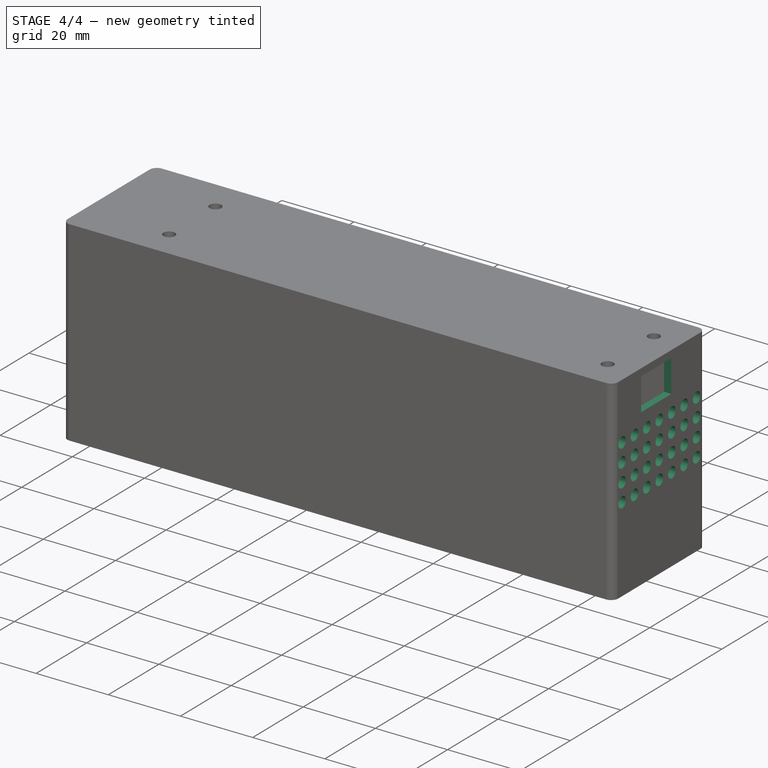
[diagram: stage 4 of 4 — iso view after this stage's code; geometry added in this stage tinted green]
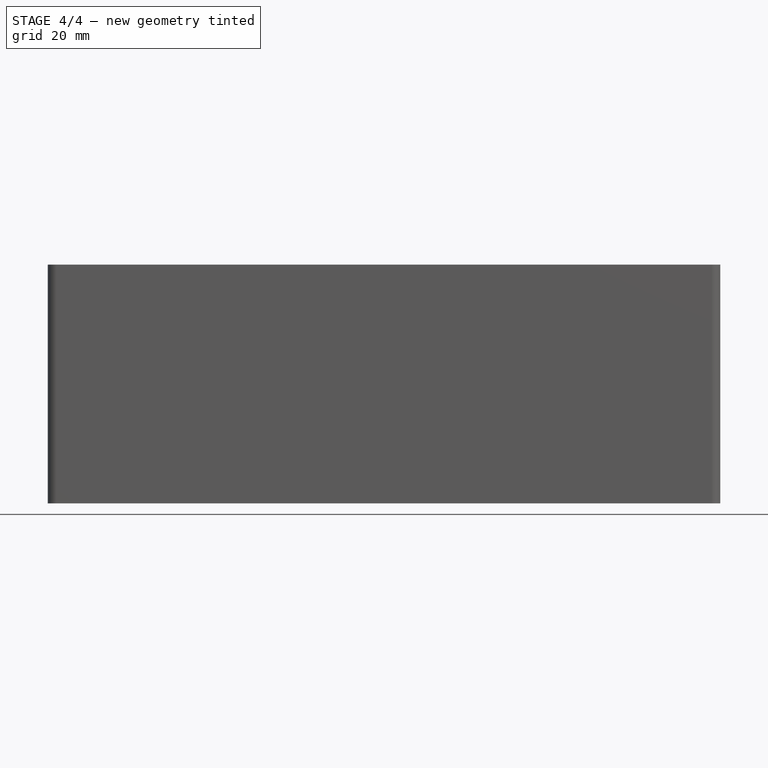
[diagram: stage 4 of 4 — front view after this stage's code; geometry added in this stage tinted green]
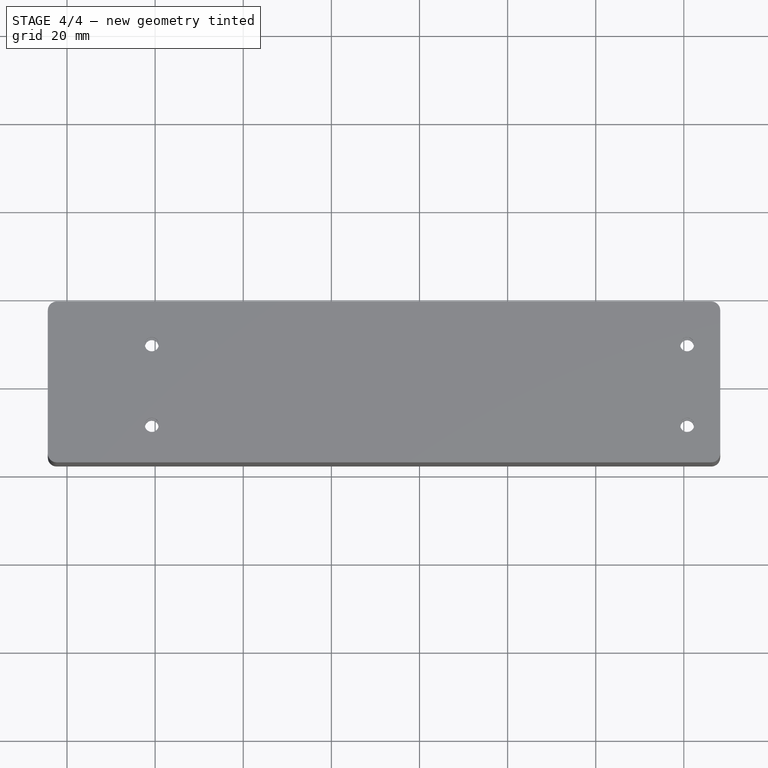
[diagram: stage 4 of 4 — top view after this stage's code; geometry added in this stage tinted green]
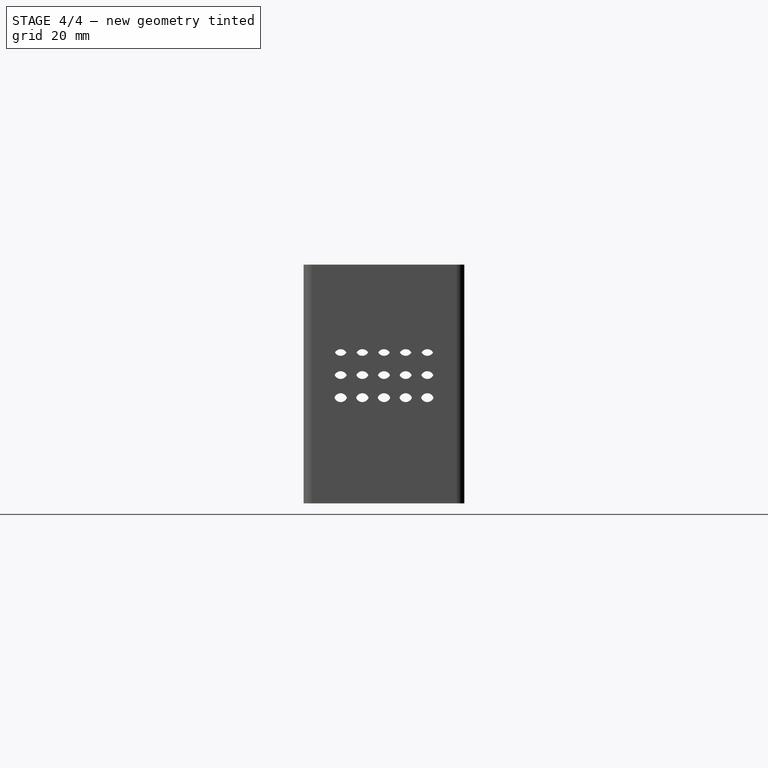
[diagram: stage 4 of 4 — right view after this stage's code; geometry added in this stage tinted green]
FEATURE [Sketcher::SketchObject] Sketch011
  ArcFitTolerance = 1e-06
  AttachmentSupport = -> [MultiTransform]
  ExternalGeometry = -> [MultiTransform]
  FullyConstrained = true
  MakeInternals = false
  MapMode = 5
  Placement = pos=(68.25,0,0) rot=(0.57735,0.57735,0.57735;2.0944rad)
  sketch-geometry (2):
    g0: LineSegment [constr] StartX=-15.65 StartY=25 StartZ=0 EndX=16.85 EndY=25 EndZ=0
    g1: Circle CenterX=-14.15 CenterY=23.5 CenterZ=0 NormalX=0 NormalY=0 NormalZ=1 AngleXU=0 Radius=1.5
  constraints (7):
    c: PointOnObject(g0,g-4)
    c: Horizontal(g0)
    c: Equal(g0,g-3)
    c: Distance(g-3,g0) = 25
    c: Tangent(g1,g0)
    c: Tangent(g1,g-4)
    c: Diameter(g1) = 3
FEATURE [PartDesign::Pocket] Pocket001  label="air output hole"
  BaseFeature = -> MultiTransform
  Direction = (-1,0,0)
  Length = 0
  Length2 = 5
  Profile = -> Sketch011
  ReferenceAxis = -> Sketch011 [N_Axis]
  Refine = true
  Suppressed = false
  Type = 3
  UpToFace = -> MultiTransform [Face75]
FEATURE [PartDesign::LinearPattern] LinearPattern002
  Direction = -> Y_Axis001
  Length = 29.5
  Mode = 0
  Occurrences = 7
  Offset = 4.91667
  Refine = true
  Suppressed = false
  TransformMode = 0
FEATURE [PartDesign::LinearPattern] LinearPattern003
  Direction = -> Sketch011 [V_Axis]
  Length = 15
  Mode = 0
  Occurrences = 4
  Offset = 5
  Refine = true
  Suppressed = false
  TransformMode = 0
FEATURE [PartDesign::MultiTransform] MultiTransform001  label="air output hole pattern"
  BaseFeature = -> Pocket001
  Originals = -> [Pocket001]
  Refine = true
  Suppressed = false
  TransformMode = 0
  Transformations = -> [LinearPattern002,LinearPattern003]
FEATURE [Sketcher::SketchObject] Sketch012
  ArcFitTolerance = 1e-06
  AttachmentSupport = -> [MultiTransform001]
  ExternalGeometry = -> [MultiTransform001]
  FullyConstrained = true
  MakeInternals = false
  MapMode = 5
  Placement = pos=(68.25,0,0) rot=(0.57735,0.57735,0.57735;2.0944rad)
  sketch-geometry (7):
    g0: LineSegment StartX=-6.65 StartY=49.2 StartZ=0 EndX=-6.65 EndY=43.2 EndZ=0
    g1: LineSegment StartX=-6.65 StartY=43.2 StartZ=0 EndX=5.35 EndY=43.2 EndZ=0
    g2: LineSegment StartX=5.35 StartY=43.2 StartZ=0 EndX=5.35 EndY=49.2 EndZ=0
    g3: LineSegment [constr] StartX=5.35 StartY=49.2 StartZ=0 EndX=-6.65 EndY=49.2 EndZ=0
    g4: LineSegment StartX=-6.65 StartY=49.2 StartZ=0 EndX=-6.65 EndY=52.2 EndZ=0
    g5: LineSegment StartX=-6.65 StartY=52.2 StartZ=0 EndX=5.35 EndY=52.2 EndZ=0
    g6: LineSegment StartX=5.35 StartY=49.2 StartZ=0 EndX=5.35 EndY=52.2 EndZ=0
  constraints (20):
    c: Coincident(g0,g1)
    c: Coincident(g1,g2)
    c: Coincident(g2,g3)
    c: Coincident(g3,g0)
    c: Vertical(g0)
    c: Vertical(g2)
    c: Horizontal(g1)
    c: Horizontal(g3)
    c: DistanceX(g3,g3) = 12
    c: DistanceY(g2,g2) = 6
    c: Distance(g-3,g3) = 3
    c: Vertical(g6)
    c: Vertical(g4)
    c: Coincident(g5,g6)
    c: Coincident(g4,g5)
    c: Horizontal(g5)
    c: Coincident(g2,g6)
    c: PointOnObject(g5,g-3)
    c: Coincident(g4,g0)
    c: Distance(g-5,g0) = 1.5
FEATURE [PartDesign::Pocket] Pocket002  label="usb connector hole"
  BaseFeature = -> MultiTransform001
  Direction = (-1,0,0)
  Length = 0
  Length2 = 5
  Profile = -> Sketch012
  ReferenceAxis = -> Sketch012 [N_Axis]
  Refine = true
  Suppressed = false
  Type = 3
  UpToFace = -> MultiTransform001 [Face103]
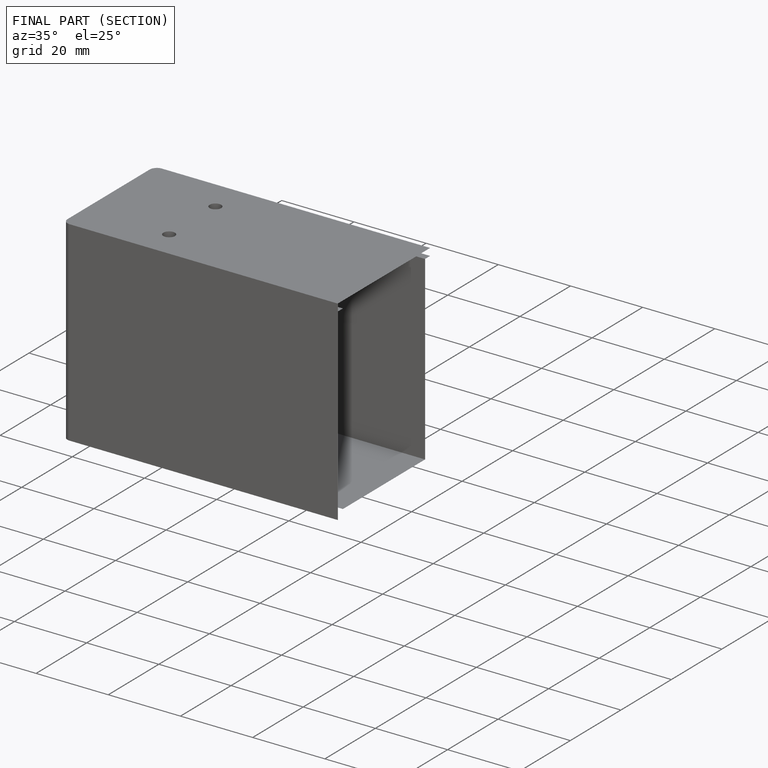
[diagram: finished part — half-section view (interior)]
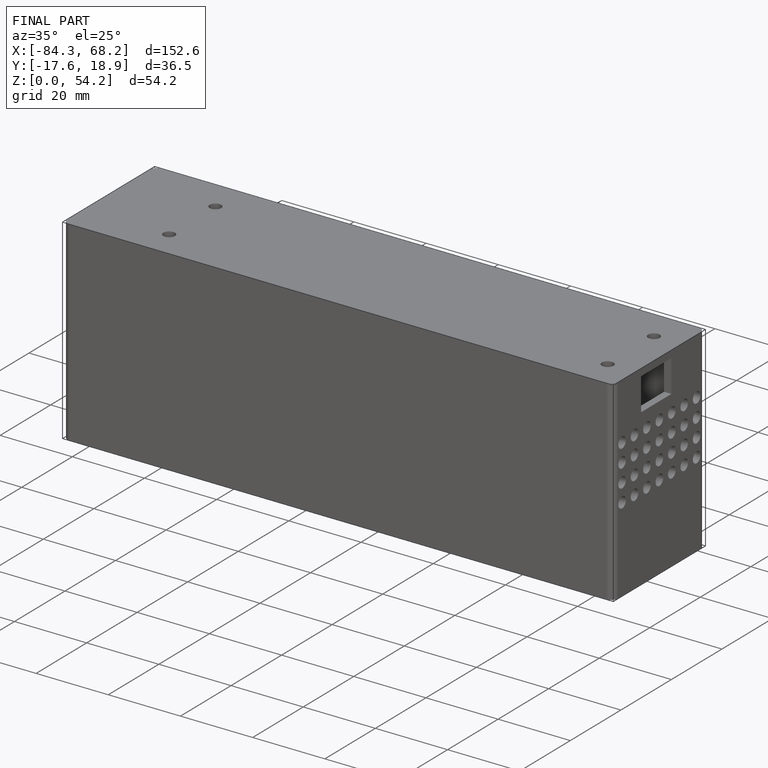
[diagram: finished part — iso view with bounding-box wireframe]
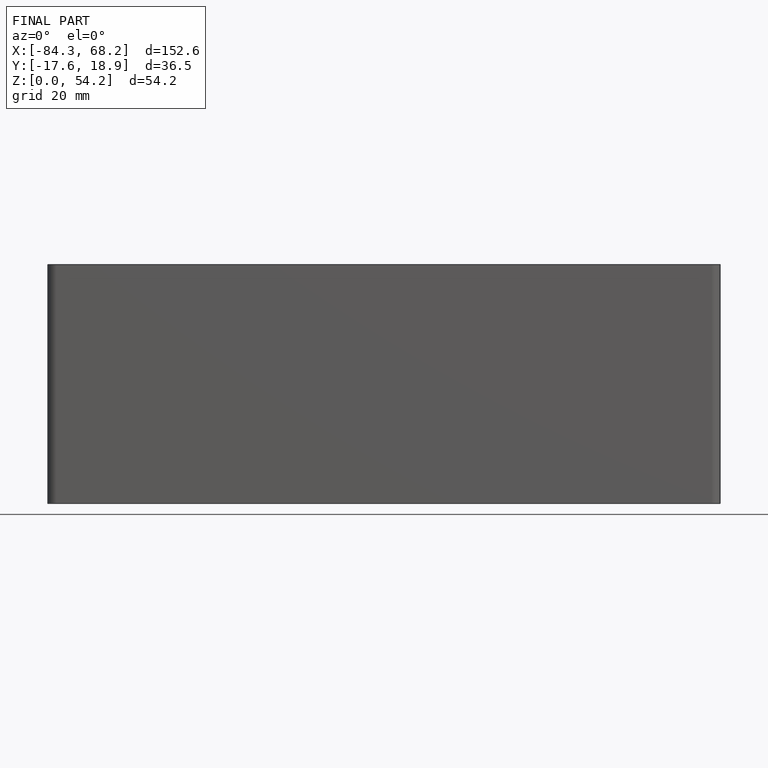
[diagram: finished part — front view with bounding-box wireframe]
